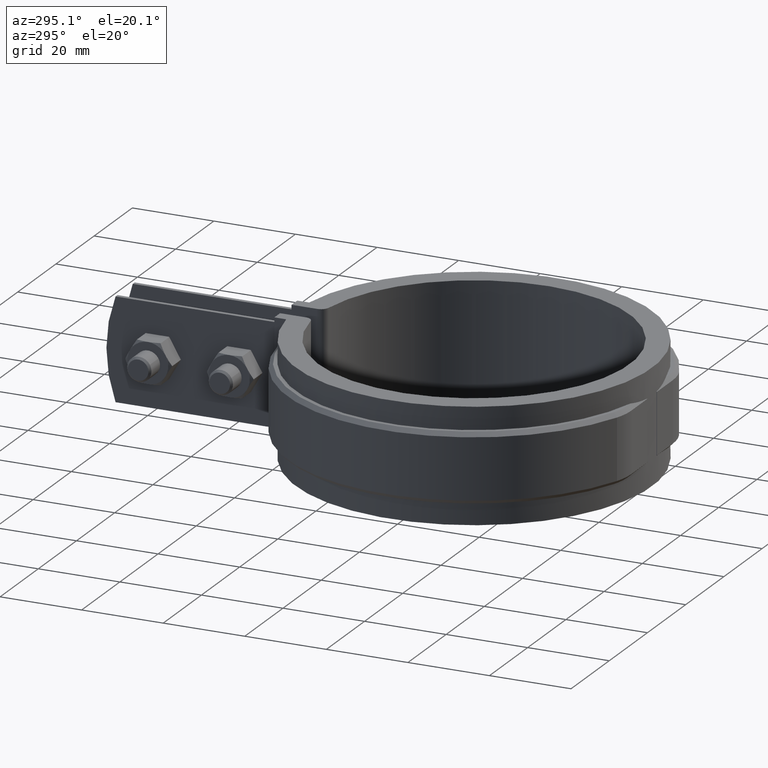
[diagram: clean part render]
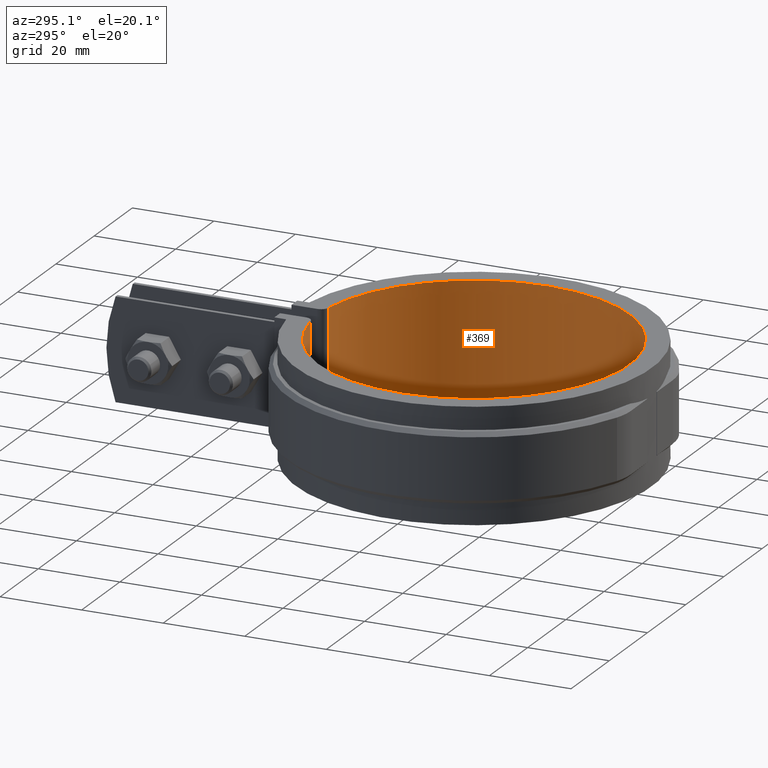
[diagram: same view with one face highlighted and labeled with its STEP entity id]
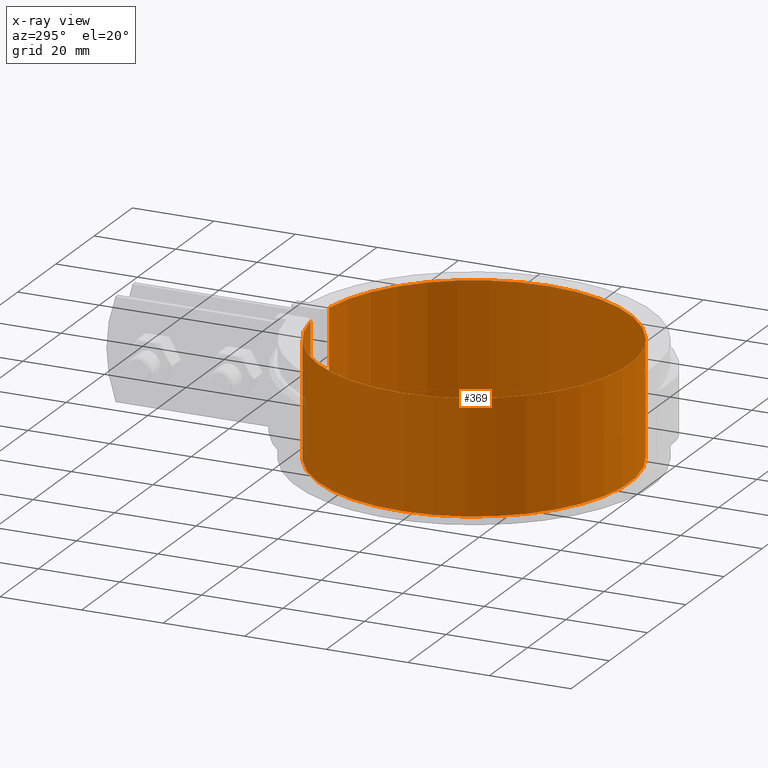
[diagram: x-ray of the same camera — body ghosted, the highlighted face saturated]
A machine part, auxiliary view. The second image highlights one B-rep face of the part: STEP entity #369.
The next image is the same camera in x-ray: the body ghosted, the highlighted face saturated — about 1% of this face is hidden behind the body in this view.
In plain terms, the highlighted cylindrical surface (partial cylindrical patch) has radius 38.15 mm, axis along (0, 0, -1).
Its self-contained STEP definition (entity closure, byte-faithful):
#369 = ADVANCED_FACE( '', ( #630 ), #631, .F. );
#630 = FACE_OUTER_BOUND( '', #1306, .T. );
#631 = CYLINDRICAL_SURFACE( '', #1307, 38.1500000000000 );
#1306 = EDGE_LOOP( '', ( #2731, #2732, #2733, #2734 ) );
#1307 = AXIS2_PLACEMENT_3D( '', #2735, #2736, #2737 );
#2731 = ORIENTED_EDGE( '', *, *, #4116, .T. );
#2732 = ORIENTED_EDGE( '', *, *, #4117, .T. );
#2733 = ORIENTED_EDGE( '', *, *, #4118, .F. );
#2734 = ORIENTED_EDGE( '', *, *, #4119, .T. );
#2735 = CARTESIAN_POINT( '', ( 0.000000000000000, 0.000000000000000, -14.0000000000000 ) );
#2736 = DIRECTION( '', ( 0.000000000000000, 0.000000000000000, -1.00000000000000 ) );
#2737 = DIRECTION( '', ( 1.00000000000000, -6.07153216591882E-017, 0.000000000000000 ) );
#4116 = EDGE_CURVE( '', #4734, #4735, #4736, .T. );
#4117 = EDGE_CURVE( '', #4735, #4737, #4738, .T. );
#4118 = EDGE_CURVE( '', #4739, #4737, #4740, .T. );
#4119 = EDGE_CURVE( '', #4739, #4734, #4741, .F. );
#4734 = VERTEX_POINT( '', #6684 );
#4735 = VERTEX_POINT( '', #6685 );
#4736 = CIRCLE( '', #6686, 38.1500000000000 );
#4737 = VERTEX_POINT( '', #6687 );
#4738 = LINE( '', #6688, #6689 );
#4739 = VERTEX_POINT( '', #6690 );
#4740 = CIRCLE( '', #6691, 38.1500000000000 );
#4741 = LINE( '', #6692, #6693 );
#6684 = CARTESIAN_POINT( '', ( 4.75093399750934, 37.8530200400352, -14.0000000000000 ) );
#6685 = CARTESIAN_POINT( '', ( -4.75093399750936, 37.8530200400352, -14.0000000000000 ) );
#6686 = AXIS2_PLACEMENT_3D( '', #8295, #8296, #8297 );
#6687 = CARTESIAN_POINT( '', ( -4.75093399750936, 37.8530200400352, 14.0000000000000 ) );
#6688 = CARTESIAN_POINT( '', ( -4.75093399750936, 37.8530200400352, -14.0000000000000 ) );
#6689 = VECTOR( '', #8298, 1000.00000000000 );
#6690 = CARTESIAN_POINT( '', ( 4.75093399750934, 37.8530200400352, 14.0000000000000 ) );
#6691 = AXIS2_PLACEMENT_3D( '', #8299, #8300, #8301 );
#6692 = CARTESIAN_POINT( '', ( 4.75093399750934, 37.8530200400352, -14.0000000000000 ) );
#6693 = VECTOR( '', #8302, 1000.00000000000 );
#8295 = CARTESIAN_POINT( '', ( 0.000000000000000, 0.000000000000000, -14.0000000000000 ) );
#8296 = DIRECTION( '', ( 0.000000000000000, 0.000000000000000, -1.00000000000000 ) );
#8297 = DIRECTION( '', ( 1.00000000000000, -6.07153216591882E-017, 0.000000000000000 ) );
#8298 = DIRECTION( '', ( 0.000000000000000, 0.000000000000000, 1.00000000000000 ) );
#8299 = CARTESIAN_POINT( '', ( 0.000000000000000, 0.000000000000000, 14.0000000000000 ) );
#8300 = DIRECTION( '', ( 0.000000000000000, 0.000000000000000, -1.00000000000000 ) );
#8301 = DIRECTION( '', ( 1.00000000000000, -6.07153216591882E-017, 0.000000000000000 ) );
#8302 = DIRECTION( '', ( 0.000000000000000, 0.000000000000000, 1.00000000000000 ) );